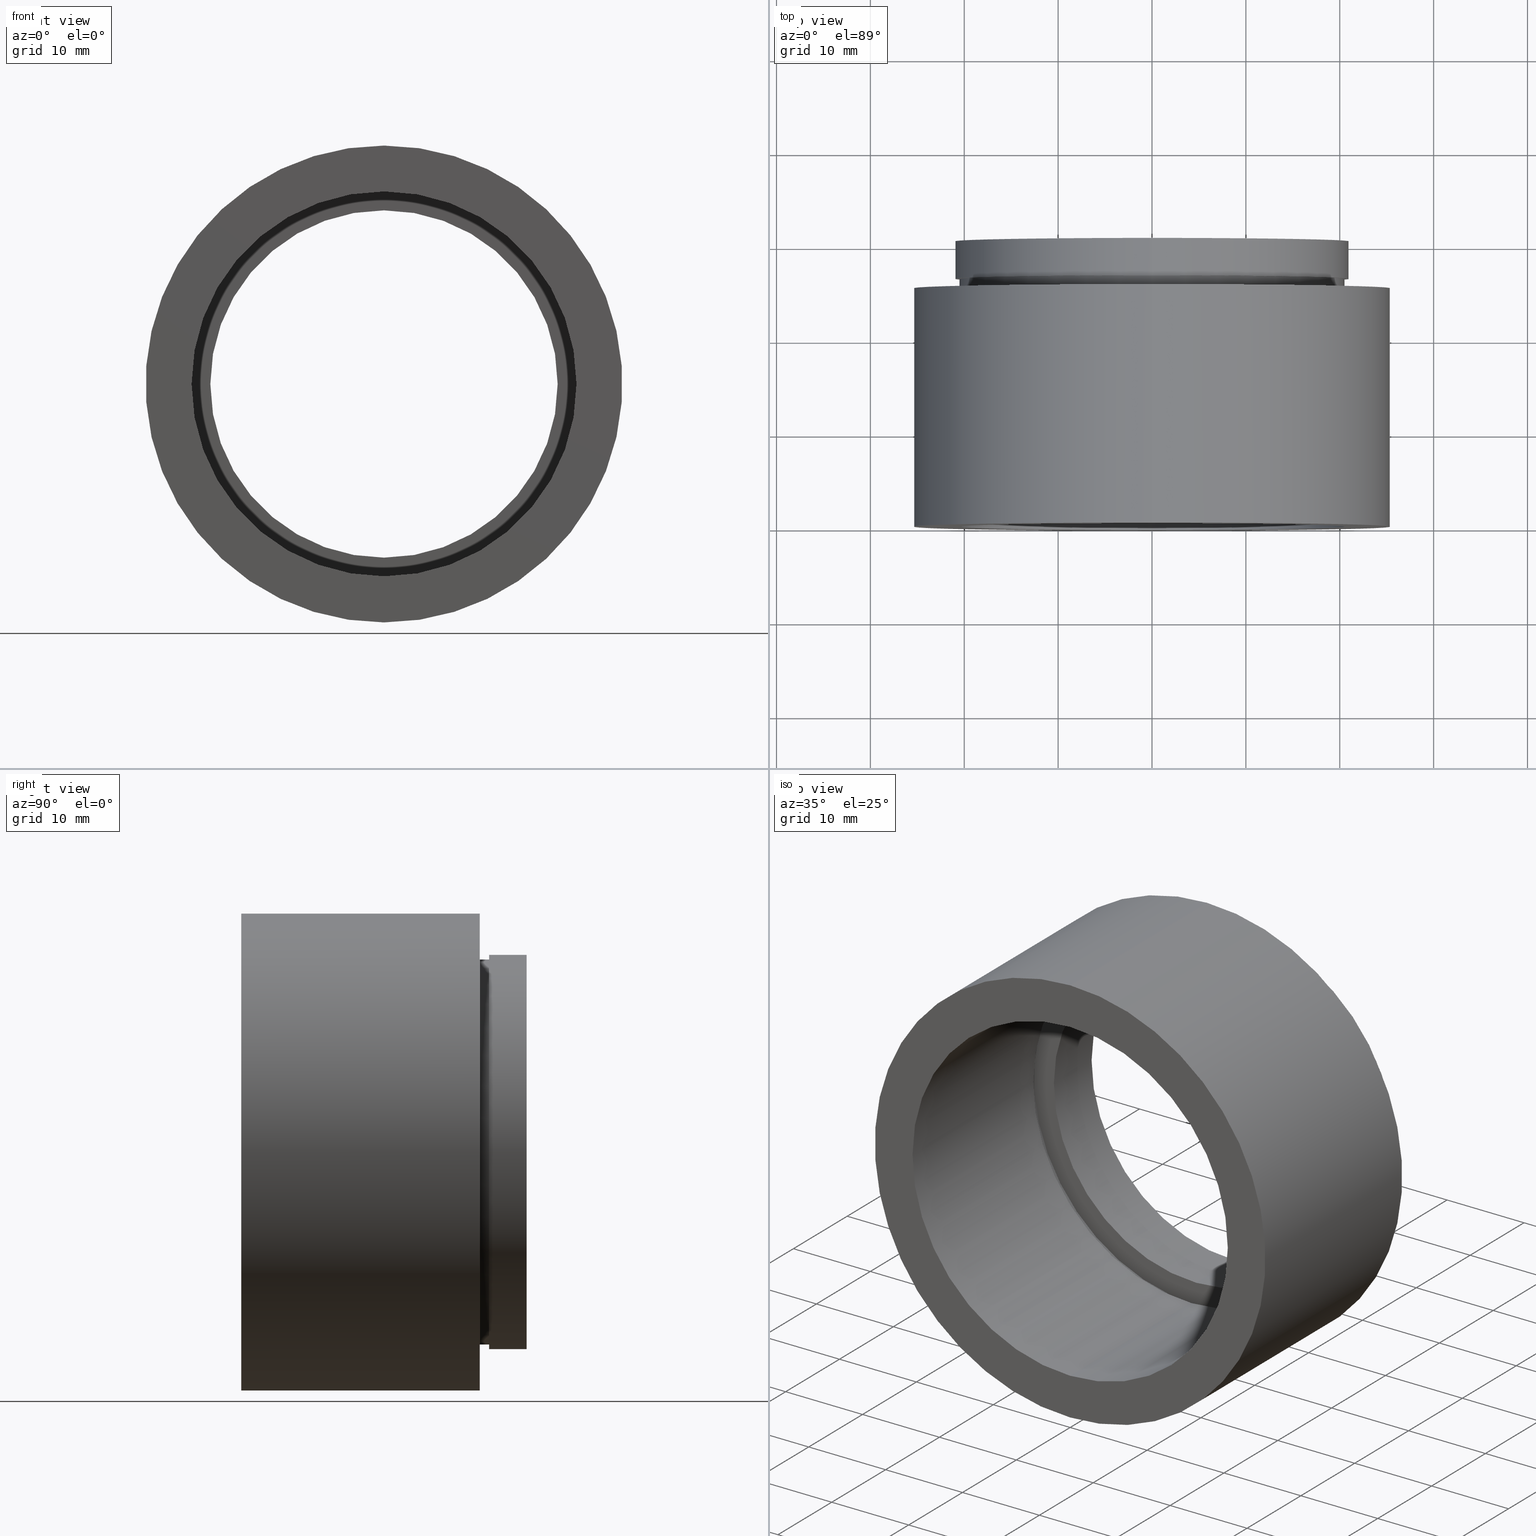
[diagram: canonical four-view strip — front | top / right | iso, engineering-drawing reading convention]
A machine part, canonical four-view strip (front | top / right | iso — engineering-drawing reading convention). The complete STEP part file that produces these views, byte-faithful:
ISO-10303-21;
HEADER;
FILE_DESCRIPTION (( 'STEP AP214' ),
    '1' );
FILE_NAME ('503025.STEP',
    '2019-09-05T05:52:53',
    ( '' ),
    ( '' ),
    'SwSTEP 2.0',
    'SolidWorks 2016',
    '' );
FILE_SCHEMA (( 'AUTOMOTIVE_DESIGN' ));
ENDSEC;

DATA;
#1 = COLOUR_RGB ( '',1.000000000000000000, 1.000000000000000000, 1.000000000000000000 ) ;
#2 = ORIENTED_EDGE ( 'NONE', *, *, #467, .F. ) ;
#3 = CARTESIAN_POINT ( 'NONE',  ( 0.0000000000000000000, 23.39999999999997700, 21.10000000000001600 ) ) ;
#4 = EDGE_CURVE ( 'NONE', #195, #379, #224, .T. ) ;
#5 = PRODUCT_DEFINITION_FORMATION_WITH_SPECIFIED_SOURCE ( '�κ�', '', #378, .NOT_KNOWN. ) ;
#6 = VERTEX_POINT ( 'NONE', #290 ) ;
#7 = VERTEX_POINT ( 'NONE', #16 ) ;
#8 = DIRECTION ( 'NONE',  ( -0.0000000000000000000, 1.000000000000000000, -0.0000000000000000000 ) ) ;
#9 = CIRCLE ( 'NONE', #212, 21.00000000000002100 ) ;
#10 = AXIS2_PLACEMENT_3D ( 'NONE', #493, #354, #26 ) ;
#11 = SURFACE_STYLE_USAGE ( .BOTH. , #427 ) ;
#12 = MANIFOLD_SOLID_BREP ( '��ת1', #55 ) ;
#13 = FACE_OUTER_BOUND ( 'NONE', #162, .T. ) ;
#14 = ORIENTED_EDGE ( 'NONE', *, *, #516, .F. ) ;
#15 = DIRECTION ( 'NONE',  ( 0.0000000000000000000, 0.0000000000000000000, 1.000000000000000000 ) ) ;
#16 = CARTESIAN_POINT ( 'NONE',  ( 2.571758278209444400E-015, 26.39999999999997700, -21.00000000000002100 ) ) ;
#17 = CARTESIAN_POINT ( 'NONE',  ( 20.50000000000002100, 22.39999999999998800, 0.0000000000000000000 ) ) ;
#18 = PRESENTATION_LAYER_ASSIGNMENT (  '', '', ( #547 ) ) ;
#19 = DIRECTION ( 'NONE',  ( -0.0000000000000000000, 1.000000000000000000, -0.0000000000000000000 ) ) ;
#20 = LINE ( 'NONE', #616, #196 ) ;
#21 = VERTEX_POINT ( 'NONE', #249 ) ;
#22 = CARTESIAN_POINT ( 'NONE',  ( 2.584004746200917000E-015, 23.39999999999997700, -21.10000000000001600 ) ) ;
#23 = FACE_BOUND ( 'NONE', #72, .T. ) ;
#24 = EDGE_CURVE ( 'NONE', #478, #398, #36, .T. ) ;
#25 = DIRECTION ( 'NONE',  ( -0.0000000000000000000, 1.000000000000000000, -0.0000000000000000000 ) ) ;
#26 = DIRECTION ( 'NONE',  ( 0.0000000000000000000, 0.0000000000000000000, 1.000000000000000000 ) ) ;
#27 = PRESENTATION_STYLE_ASSIGNMENT (( #34 ) ) ;
#28 =( NAMED_UNIT ( * ) PLANE_ANGLE_UNIT ( ) SI_UNIT ( $, .RADIAN. ) );
#29 = PRESENTATION_STYLE_ASSIGNMENT (( #372 ) ) ;
#30 = AXIS2_PLACEMENT_3D ( 'NONE', #340, #155, #15 ) ;
#31 = EDGE_LOOP ( 'NONE', ( #93, #268, #159, #392 ) ) ;
#32 = APPLICATION_PROTOCOL_DEFINITION ( 'draft international standard', 'automotive_design', 1998, #261 ) ;
#33 = FILL_AREA_STYLE ('',( #407 ) ) ;
#34 = SURFACE_STYLE_USAGE ( .BOTH. , #82 ) ;
#35 = ADVANCED_FACE ( 'NONE', ( #203 ), #182, .T. ) ;
#36 = LINE ( 'NONE', #201, #154 ) ;
#37 = DIRECTION ( 'NONE',  ( 0.0000000000000000000, 0.0000000000000000000, 1.000000000000000000 ) ) ;
#38 = FACE_OUTER_BOUND ( 'NONE', #527, .T. ) ;
#39 = AXIS2_PLACEMENT_3D ( 'NONE', #536, #69, #496 ) ;
#40 = DIRECTION ( 'NONE',  ( 0.0000000000000000000, 0.0000000000000000000, 1.000000000000000000 ) ) ;
#41 = ORIENTED_EDGE ( 'NONE', *, *, #410, .F. ) ;
#42 = CYLINDRICAL_SURFACE ( 'NONE', #190, 25.40000000000001600 ) ;
#43 = ORIENTED_EDGE ( 'NONE', *, *, #169, .T. ) ;
#44 = AXIS2_PLACEMENT_3D ( 'NONE', #129, #172, #37 ) ;
#45 = COLOUR_RGB ( '',1.000000000000000000, 1.000000000000000000, 1.000000000000000000 ) ;
#46 = CIRCLE ( 'NONE', #247, 20.50000000000002100 ) ;
#47 = FACE_OUTER_BOUND ( 'NONE', #519, .T. ) ;
#48 = EDGE_CURVE ( 'NONE', #593, #446, #312, .T. ) ;
#49 = CARTESIAN_POINT ( 'NONE',  ( 2.510525938252076100E-015, 161.3761669434274500, -20.50000000000001800 ) ) ;
#50 = AXIS2_PLACEMENT_3D ( 'NONE', #53, #572, #620 ) ;
#51 = CIRCLE ( 'NONE', #147, 20.50000000000001800 ) ;
#52 = SURFACE_SIDE_STYLE ('',( #352 ) ) ;
#53 = CARTESIAN_POINT ( 'NONE',  ( 0.0000000000000000000, 26.39999999999997700, 0.0000000000000000000 ) ) ;
#54 = ORIENTED_EDGE ( 'NONE', *, *, #239, .F. ) ;
#55 = CLOSED_SHELL ( 'NONE', ( #596, #73, #400, #266, #35, #483, #393, #304, #114, #609, #448, #79, #445, #490, #296, #543, #310, #83 ) ) ;
#56 = EDGE_CURVE ( 'NONE', #103, #614, #60, .T. ) ;
#57 = DIRECTION ( 'NONE',  ( -0.0000000000000000000, 1.000000000000000000, -0.0000000000000000000 ) ) ;
#58 = AXIS2_PLACEMENT_3D ( 'NONE', #376, #238, #522 ) ;
#59 = STYLED_ITEM ( 'NONE', ( #165 ), #12 ) ;
#60 = LINE ( 'NONE', #295, #552 ) ;
#61 = ADVANCED_BREP_SHAPE_REPRESENTATION ( '503025', ( #12, #601 ), #406 ) ;
#62 = MECHANICAL_DESIGN_GEOMETRIC_PRESENTATION_REPRESENTATION (  '', ( #509 ), #300 ) ;
#63 = DIRECTION ( 'NONE',  ( 0.0000000000000000000, -0.0000000000000000000, -1.000000000000000000 ) ) ;
#64 = ORIENTED_EDGE ( 'NONE', *, *, #610, .F. ) ;
#65 = ORIENTED_EDGE ( 'NONE', *, *, #70, .T. ) ;
#66 = DIRECTION ( 'NONE',  ( 0.0000000000000000000, 0.0000000000000000000, 1.000000000000000000 ) ) ;
#67 = CARTESIAN_POINT ( 'NONE',  ( 2.584004746200917000E-015, 161.3761669434274500, -21.10000000000001600 ) ) ;
#68 = MECHANICAL_DESIGN_GEOMETRIC_PRESENTATION_REPRESENTATION (  '', ( #547 ), #161 ) ;
#69 = DIRECTION ( 'NONE',  ( -0.0000000000000000000, 1.000000000000000000, -0.0000000000000000000 ) ) ;
#70 = EDGE_CURVE ( 'NONE', #6, #81, #502, .T. ) ;
#71 = SURFACE_STYLE_FILL_AREA ( #319 ) ;
#72 = EDGE_LOOP ( 'NONE', ( #248, #408 ) ) ;
#73 = ADVANCED_FACE ( 'NONE', ( #454 ), #208, .F. ) ;
#74 = COLOUR_RGB ( '',1.000000000000000000, 1.000000000000000000, 1.000000000000000000 ) ;
#75 = VERTEX_POINT ( 'NONE', #350 ) ;
#76 = PRESENTATION_LAYER_ASSIGNMENT (  '', '', ( #521 ) ) ;
#77 = ORIENTED_EDGE ( 'NONE', *, *, #56, .F. ) ;
#78 = UNCERTAINTY_MEASURE_WITH_UNIT (LENGTH_MEASURE( 1.000000000000000100E-005 ), #604, 'distance_accuracy_value', 'NONE');
#79 = ADVANCED_FACE ( 'NONE', ( #346, #595 ), #168, .F. ) ;
#80 = DIRECTION ( 'NONE',  ( 0.0000000000000000000, 0.0000000000000000000, 1.000000000000000000 ) ) ;
#81 = VERTEX_POINT ( 'NONE', #22 ) ;
#82 = SURFACE_SIDE_STYLE ('',( #137 ) ) ;
#83 = ADVANCED_FACE ( 'NONE', ( #508, #471 ), #113, .F. ) ;
#84 = ORIENTED_EDGE ( 'NONE', *, *, #481, .F. ) ;
#85 = EDGE_CURVE ( 'NONE', #478, #7, #9, .T. ) ;
#86 = ORIENTED_EDGE ( 'NONE', *, *, #335, .F. ) ;
#87 = DIRECTION ( 'NONE',  ( -0.0000000000000000000, 1.000000000000000000, -0.0000000000000000000 ) ) ;
#88 = VERTEX_POINT ( 'NONE', #592 ) ;
#89 =( NAMED_UNIT ( * ) SI_UNIT ( $, .STERADIAN. ) SOLID_ANGLE_UNIT ( ) );
#90 = VERTEX_POINT ( 'NONE', #345 ) ;
#91 = DIRECTION ( 'NONE',  ( 0.0000000000000000000, -0.0000000000000000000, -1.000000000000000000 ) ) ;
#92 = AXIS2_PLACEMENT_3D ( 'NONE', #102, #530, #250 ) ;
#93 = ORIENTED_EDGE ( 'NONE', *, *, #501, .F. ) ;
#94 = AXIS2_PLACEMENT_3D ( 'NONE', #181, #451, #264 ) ;
#95 = LINE ( 'NONE', #515, #132 ) ;
#96 = CARTESIAN_POINT ( 'NONE',  ( 0.0000000000000000000, 22.39999999999997700, 20.50000000000002100 ) ) ;
#97 = EDGE_CURVE ( 'NONE', #90, #6, #260, .T. ) ;
#98 = CARTESIAN_POINT ( 'NONE',  ( 0.0000000000000000000, 30.39999999999998400, 0.0000000000000000000 ) ) ;
#99 = LINE ( 'NONE', #140, #369 ) ;
#100 = ORIENTED_EDGE ( 'NONE', *, *, #501, .T. ) ;
#101 = FILL_AREA_STYLE_COLOUR ( '', #559 ) ;
#102 = CARTESIAN_POINT ( 'NONE',  ( 0.0000000000000000000, 23.39999999999997700, 0.0000000000000000000 ) ) ;
#103 = VERTEX_POINT ( 'NONE', #541 ) ;
#104 = EDGE_CURVE ( 'NONE', #7, #495, #273, .T. ) ;
#105 =( NAMED_UNIT ( * ) PLANE_ANGLE_UNIT ( ) SI_UNIT ( $, .RADIAN. ) );
#106 =( GEOMETRIC_REPRESENTATION_CONTEXT ( 3 ) GLOBAL_UNCERTAINTY_ASSIGNED_CONTEXT ( ( #494 ) ) GLOBAL_UNIT_ASSIGNED_CONTEXT ( ( #138, #567, #89 ) ) REPRESENTATION_CONTEXT ( 'NONE', 'WORKASPACE' ) );
#107 = CARTESIAN_POINT ( 'NONE',  ( 0.0000000000000000000, 161.3761669434274500, 0.0000000000000000000 ) ) ;
#108 = ORIENTED_EDGE ( 'NONE', *, *, #433, .F. ) ;
#109 = DIRECTION ( 'NONE',  ( 0.0000000000000000000, 0.0000000000000000000, 1.000000000000000000 ) ) ;
#110 = AXIS2_PLACEMENT_3D ( 'NONE', #401, #176, #611 ) ;
#111 = CARTESIAN_POINT ( 'NONE',  ( 0.0000000000000000000, 161.3761669434274500, 21.10000000000001600 ) ) ;
#112 = CARTESIAN_POINT ( 'NONE',  ( 0.0000000000000000000, 161.3761669434274500, 0.0000000000000000000 ) ) ;
#113 = PLANE ( 'NONE',  #10 ) ;
#114 = ADVANCED_FACE ( 'NONE', ( #381 ), #388, .T. ) ;
#115 = DIRECTION ( 'NONE',  ( -0.0000000000000000000, 1.000000000000000000, -0.0000000000000000000 ) ) ;
#116 = MECHANICAL_DESIGN_GEOMETRIC_PRESENTATION_REPRESENTATION (  '', ( #128 ), #183 ) ;
#117 = FACE_BOUND ( 'NONE', #429, .T. ) ;
#118 = FILL_AREA_STYLE ('',( #545 ) ) ;
#119 = FACE_OUTER_BOUND ( 'NONE', #412, .T. ) ;
#120 =( NAMED_UNIT ( * ) SI_UNIT ( $, .STERADIAN. ) SOLID_ANGLE_UNIT ( ) );
#121 = EDGE_LOOP ( 'NONE', ( #301, #365, #64, #469 ) ) ;
#122 = FILL_AREA_STYLE ('',( #341 ) ) ;
#123 = CARTESIAN_POINT ( 'NONE',  ( 0.0000000000000000000, 22.39999999999997700, 0.0000000000000000000 ) ) ;
#124 = EDGE_LOOP ( 'NONE', ( #594, #148, #339, #136 ) ) ;
#125 = CYLINDRICAL_SURFACE ( 'NONE', #461, 18.50000000000001400 ) ;
#126 = DIRECTION ( 'NONE',  ( -0.0000000000000000000, 1.000000000000000000, -0.0000000000000000000 ) ) ;
#127 = CARTESIAN_POINT ( 'NONE',  ( 0.0000000000000000000, -2.775557561562891400E-014, 0.0000000000000000000 ) ) ;
#128 = STYLED_ITEM ( 'NONE', ( #404 ), #73 ) ;
#129 = CARTESIAN_POINT ( 'NONE',  ( 0.0000000000000000000, 30.39999999999998400, 0.0000000000000000000 ) ) ;
#130 = AXIS2_PLACEMENT_3D ( 'NONE', #170, #488, #254 ) ;
#131 = ORIENTED_EDGE ( 'NONE', *, *, #97, .F. ) ;
#132 = VECTOR ( 'NONE', #280, 1000.000000000000000 ) ;
#133 = EDGE_CURVE ( 'NONE', #75, #284, #173, .T. ) ;
#134 = ORIENTED_EDGE ( 'NONE', *, *, #231, .T. ) ;
#135 = CARTESIAN_POINT ( 'NONE',  ( 18.50000000000001400, 30.39999999999998400, 0.0000000000000000000 ) ) ;
#136 = ORIENTED_EDGE ( 'NONE', *, *, #163, .T. ) ;
#137 = SURFACE_STYLE_FILL_AREA ( #33 ) ;
#138 =( LENGTH_UNIT ( ) NAMED_UNIT ( * ) SI_UNIT ( .MILLI., .METRE. ) );
#139 = CYLINDRICAL_SURFACE ( 'NONE', #449, 20.50000000000002100 ) ;
#140 = CARTESIAN_POINT ( 'NONE',  ( 0.0000000000000000000, 161.3761669434274500, 25.40000000000001600 ) ) ;
#141 = ORIENTED_EDGE ( 'NONE', *, *, #362, .F. ) ;
#142 = DIRECTION ( 'NONE',  ( -0.0000000000000000000, 1.000000000000000000, -0.0000000000000000000 ) ) ;
#143 = DIRECTION ( 'NONE',  ( -0.0000000000000000000, 1.000000000000000000, -0.0000000000000000000 ) ) ;
#144 = DIRECTION ( 'NONE',  ( 0.0000000000000000000, 0.0000000000000000000, 1.000000000000000000 ) ) ;
#145 = LINE ( 'NONE', #411, #421 ) ;
#146 = EDGE_CURVE ( 'NONE', #311, #103, #46, .T. ) ;
#147 = AXIS2_PLACEMENT_3D ( 'NONE', #389, #583, #338 ) ;
#148 = ORIENTED_EDGE ( 'NONE', *, *, #591, .F. ) ;
#149 = PRESENTATION_LAYER_ASSIGNMENT (  '', '', ( #397 ) ) ;
#150 = UNCERTAINTY_MEASURE_WITH_UNIT (LENGTH_MEASURE( 1.000000000000000100E-005 ), #217, 'distance_accuracy_value', 'NONE');
#151 = VECTOR ( 'NONE', #126, 1000.000000000000000 ) ;
#152 =( LENGTH_UNIT ( ) NAMED_UNIT ( * ) SI_UNIT ( .MILLI., .METRE. ) );
#153 = DIRECTION ( 'NONE',  ( -0.0000000000000000000, 1.000000000000000000, -0.0000000000000000000 ) ) ;
#154 = VECTOR ( 'NONE', #19, 1000.000000000000000 ) ;
#155 = DIRECTION ( 'NONE',  ( -0.0000000000000000000, 1.000000000000000000, -0.0000000000000000000 ) ) ;
#156 = VECTOR ( 'NONE', #317, 1000.000000000000000 ) ;
#157 = CIRCLE ( 'NONE', #525, 21.10000000000001600 ) ;
#158 = DIRECTION ( 'NONE',  ( -0.0000000000000000000, 1.000000000000000000, 0.0000000000000000000 ) ) ;
#159 = ORIENTED_EDGE ( 'NONE', *, *, #228, .T. ) ;
#160 = AXIS2_PLACEMENT_3D ( 'NONE', #380, #434, #383 ) ;
#161 =( GEOMETRIC_REPRESENTATION_CONTEXT ( 3 ) GLOBAL_UNCERTAINTY_ASSIGNED_CONTEXT ( ( #150 ) ) GLOBAL_UNIT_ASSIGNED_CONTEXT ( ( #217, #560, #409 ) ) REPRESENTATION_CONTEXT ( 'NONE', 'WORKASPACE' ) );
#162 = EDGE_LOOP ( 'NONE', ( #77, #475, #204, #385 ) ) ;
#163 = EDGE_CURVE ( 'NONE', #284, #569, #313, .T. ) ;
#164 = DIRECTION ( 'NONE',  ( 0.0000000000000000000, -0.0000000000000000000, -1.000000000000000000 ) ) ;
#165 = PRESENTATION_STYLE_ASSIGNMENT (( #11 ) ) ;
#166 = UNCERTAINTY_MEASURE_WITH_UNIT (LENGTH_MEASURE( 1.000000000000000100E-005 ), #279, 'distance_accuracy_value', 'NONE');
#167 = CIRCLE ( 'NONE', #603, 25.40000000000001300 ) ;
#168 = PLANE ( 'NONE',  #524 ) ;
#169 = EDGE_CURVE ( 'NONE', #371, #593, #580, .T. ) ;
#170 = CARTESIAN_POINT ( 'NONE',  ( 0.0000000000000000000, 22.40000000000000200, 0.0000000000000000000 ) ) ;
#171 = AXIS2_PLACEMENT_3D ( 'NONE', #135, #323, #91 ) ;
#172 = DIRECTION ( 'NONE',  ( -0.0000000000000000000, 1.000000000000000000, -0.0000000000000000000 ) ) ;
#173 = LINE ( 'NONE', #357, #156 ) ;
#174 = UNCERTAINTY_MEASURE_WITH_UNIT (LENGTH_MEASURE( 1.000000000000000100E-005 ), #259, 'distance_accuracy_value', 'NONE');
#175 = CIRCLE ( 'NONE', #50, 21.00000000000002100 ) ;
#176 = DIRECTION ( 'NONE',  ( -0.0000000000000000000, 1.000000000000000000, -0.0000000000000000000 ) ) ;
#177 = ORIENTED_EDGE ( 'NONE', *, *, #467, .T. ) ;
#178 = FACE_BOUND ( 'NONE', #588, .T. ) ;
#179 = PRESENTATION_LAYER_ASSIGNMENT (  '', '', ( #509 ) ) ;
#180 = CARTESIAN_POINT ( 'NONE',  ( 0.0000000000000000000, 25.39999999999997700, 25.40000000000001300 ) ) ;
#181 = CARTESIAN_POINT ( 'NONE',  ( 0.0000000000000000000, 23.39999999999997700, 0.0000000000000000000 ) ) ;
#182 = CYLINDRICAL_SURFACE ( 'NONE', #193, 21.00000000000001800 ) ;
#183 =( GEOMETRIC_REPRESENTATION_CONTEXT ( 3 ) GLOBAL_UNCERTAINTY_ASSIGNED_CONTEXT ( ( #174 ) ) GLOBAL_UNIT_ASSIGNED_CONTEXT ( ( #259, #606, #441 ) ) REPRESENTATION_CONTEXT ( 'NONE', 'WORKASPACE' ) );
#184 = CARTESIAN_POINT ( 'NONE',  ( 0.0000000000000000000, 161.3761669434274500, 0.0000000000000000000 ) ) ;
#185 = CARTESIAN_POINT ( 'NONE',  ( 0.0000000000000000000, 25.39999999999997700, 0.0000000000000000000 ) ) ;
#186 = DIRECTION ( 'NONE',  ( -0.0000000000000000000, 1.000000000000000000, -0.0000000000000000000 ) ) ;
#187 = FILL_AREA_STYLE_COLOUR ( '', #523 ) ;
#188 = PRESENTATION_STYLE_ASSIGNMENT (( #391 ) ) ;
#189 = DIRECTION ( 'NONE',  ( 0.0000000000000000000, 0.0000000000000000000, 1.000000000000000000 ) ) ;
#190 = AXIS2_PLACEMENT_3D ( 'NONE', #197, #520, #278 ) ;
#191 = ORIENTED_EDGE ( 'NONE', *, *, #235, .F. ) ;
#192 = CARTESIAN_POINT ( 'NONE',  ( 0.0000000000000000000, 25.39999999999997700, 0.0000000000000000000 ) ) ;
#193 = AXIS2_PLACEMENT_3D ( 'NONE', #531, #399, #209 ) ;
#194 = ORIENTED_EDGE ( 'NONE', *, *, #85, .F. ) ;
#195 = VERTEX_POINT ( 'NONE', #180 ) ;
#196 = VECTOR ( 'NONE', #618, 1000.000000000000000 ) ;
#197 = CARTESIAN_POINT ( 'NONE',  ( 0.0000000000000000000, 161.3761669434274500, 0.0000000000000000000 ) ) ;
#198 = EDGE_LOOP ( 'NONE', ( #324, #607 ) ) ;
#199 = CIRCLE ( 'NONE', #587, 20.50000000000001400 ) ;
#200 = PLANE ( 'NONE',  #413 ) ;
#201 = CARTESIAN_POINT ( 'NONE',  ( 0.0000000000000000000, 161.3761669434274500, 21.00000000000001800 ) ) ;
#202 = AXIS2_PLACEMENT_3D ( 'NONE', #243, #236, #329 ) ;
#203 = FACE_OUTER_BOUND ( 'NONE', #121, .T. ) ;
#204 = ORIENTED_EDGE ( 'NONE', *, *, #425, .T. ) ;
#205 = PRODUCT_DEFINITION_CONTEXT ( 'detailed design', #261, 'design' ) ;
#206 = DIRECTION ( 'NONE',  ( -0.0000000000000000000, 1.000000000000000000, -0.0000000000000000000 ) ) ;
#207 = ORIENTED_EDGE ( 'NONE', *, *, #394, .T. ) ;
#208 = CYLINDRICAL_SURFACE ( 'NONE', #459, 20.50000000000002100 ) ;
#209 = DIRECTION ( 'NONE',  ( 0.0000000000000000000, 0.0000000000000000000, 1.000000000000000000 ) ) ;
#210 = SURFACE_STYLE_USAGE ( .BOTH. , #597 ) ;
#211 = ORIENTED_EDGE ( 'NONE', *, *, #394, .F. ) ;
#212 = AXIS2_PLACEMENT_3D ( 'NONE', #497, #25, #213 ) ;
#213 = DIRECTION ( 'NONE',  ( 0.0000000000000000000, 0.0000000000000000000, 1.000000000000000000 ) ) ;
#214 = FILL_AREA_STYLE_COLOUR ( '', #430 ) ;
#215 = VERTEX_POINT ( 'NONE', #499 ) ;
#216 =( LENGTH_UNIT ( ) NAMED_UNIT ( * ) SI_UNIT ( .MILLI., .METRE. ) );
#217 =( LENGTH_UNIT ( ) NAMED_UNIT ( * ) SI_UNIT ( .MILLI., .METRE. ) );
#218 = ORIENTED_EDGE ( 'NONE', *, *, #433, .T. ) ;
#219 = AXIS2_PLACEMENT_3D ( 'NONE', #288, #158, #109 ) ;
#220 = DIRECTION ( 'NONE',  ( 0.0000000000000000000, 0.0000000000000000000, 1.000000000000000000 ) ) ;
#221 = FACE_OUTER_BOUND ( 'NONE', #538, .T. ) ;
#222 = DIRECTION ( 'NONE',  ( -0.0000000000000000000, 1.000000000000000000, -0.0000000000000000000 ) ) ;
#223 = PRESENTATION_LAYER_ASSIGNMENT (  '', '', ( #128 ) ) ;
#224 = CIRCLE ( 'NONE', #160, 25.40000000000001300 ) ;
#225 = CARTESIAN_POINT ( 'NONE',  ( 0.0000000000000000000, 22.39999999999997700, 0.0000000000000000000 ) ) ;
#226 = ORIENTED_EDGE ( 'NONE', *, *, #269, .F. ) ;
#227 = LINE ( 'NONE', #111, #237 ) ;
#228 = EDGE_CURVE ( 'NONE', #614, #442, #382, .T. ) ;
#229 = CARTESIAN_POINT ( 'NONE',  ( 0.0000000000000000000, -2.775557561562891400E-014, 20.50000000000002100 ) ) ;
#230 = DIRECTION ( 'NONE',  ( -0.0000000000000000000, 1.000000000000000000, -0.0000000000000000000 ) ) ;
#231 = EDGE_CURVE ( 'NONE', #359, #88, #275, .T. ) ;
#232 = DIRECTION ( 'NONE',  ( -0.0000000000000000000, 1.000000000000000000, -0.0000000000000000000 ) ) ;
#233 = AXIS2_PLACEMENT_3D ( 'NONE', #534, #482, #245 ) ;
#234 = EDGE_LOOP ( 'NONE', ( #41, #211 ) ) ;
#235 = EDGE_CURVE ( 'NONE', #359, #379, #145, .T. ) ;
#236 = DIRECTION ( 'NONE',  ( -0.0000000000000000000, 1.000000000000000000, -0.0000000000000000000 ) ) ;
#237 = VECTOR ( 'NONE', #8, 1000.000000000000000 ) ;
#238 = DIRECTION ( 'NONE',  ( -0.0000000000000000000, 1.000000000000000000, -0.0000000000000000000 ) ) ;
#239 = EDGE_CURVE ( 'NONE', #81, #464, #293, .T. ) ;
#240 = AXIS2_PLACEMENT_3D ( 'NONE', #343, #153, #66 ) ;
#241 = ORIENTED_EDGE ( 'NONE', *, *, #231, .F. ) ;
#242 = CARTESIAN_POINT ( 'NONE',  ( 2.510525938252076100E-015, 26.39999999999997700, -20.50000000000001800 ) ) ;
#243 = CARTESIAN_POINT ( 'NONE',  ( 0.0000000000000000000, 23.39999999999997700, 0.0000000000000000000 ) ) ;
#244 = EDGE_LOOP ( 'NONE', ( #457, #141 ) ) ;
#245 = DIRECTION ( 'NONE',  ( 0.0000000000000000000, 0.0000000000000000000, 1.000000000000000000 ) ) ;
#246 = CARTESIAN_POINT ( 'NONE',  ( 21.00000000000002100, 26.39999999999998400, 0.0000000000000000000 ) ) ;
#247 = AXIS2_PLACEMENT_3D ( 'NONE', #551, #403, #220 ) ;
#248 = ORIENTED_EDGE ( 'NONE', *, *, #263, .F. ) ;
#249 = CARTESIAN_POINT ( 'NONE',  ( 2.265596578422605000E-015, 23.39999999999997700, -18.50000000000001400 ) ) ;
#250 = DIRECTION ( 'NONE',  ( 0.0000000000000000000, 0.0000000000000000000, 1.000000000000000000 ) ) ;
#251 = SURFACE_STYLE_FILL_AREA ( #563 ) ;
#252 = DIRECTION ( 'NONE',  ( 0.0000000000000000000, 0.0000000000000000000, 1.000000000000000000 ) ) ;
#253 = ORIENTED_EDGE ( 'NONE', *, *, #362, .T. ) ;
#254 = DIRECTION ( 'NONE',  ( 0.0000000000000000000, 0.0000000000000000000, 1.000000000000000000 ) ) ;
#255 = CIRCLE ( 'NONE', #491, 21.00000000000001800 ) ;
#256 = CARTESIAN_POINT ( 'NONE',  ( 0.0000000000000000000, 30.39999999999998400, 0.0000000000000000000 ) ) ;
#257 = EDGE_CURVE ( 'NONE', #464, #81, #157, .T. ) ;
#258 = ORIENTED_EDGE ( 'NONE', *, *, #4, .F. ) ;
#259 =( LENGTH_UNIT ( ) NAMED_UNIT ( * ) SI_UNIT ( .MILLI., .METRE. ) );
#260 = CIRCLE ( 'NONE', #130, 21.10000000000001600 ) ;
#261 = APPLICATION_CONTEXT ( 'automotive_design' ) ;
#262 = SURFACE_SIDE_STYLE ('',( #540 ) ) ;
#263 = EDGE_CURVE ( 'NONE', #442, #614, #542, .T. ) ;
#264 = DIRECTION ( 'NONE',  ( 0.0000000000000000000, 0.0000000000000000000, 1.000000000000000000 ) ) ;
#265 = ORIENTED_EDGE ( 'NONE', *, *, #481, .T. ) ;
#266 = ADVANCED_FACE ( 'NONE', ( #281 ), #361, .T. ) ;
#267 = CARTESIAN_POINT ( 'NONE',  ( 0.0000000000000000000, 30.39999999999998400, 18.50000000000001400 ) ) ;
#268 = ORIENTED_EDGE ( 'NONE', *, *, #56, .T. ) ;
#269 = EDGE_CURVE ( 'NONE', #7, #478, #175, .T. ) ;
#270 = DIRECTION ( 'NONE',  ( -0.0000000000000000000, 1.000000000000000000, -0.0000000000000000000 ) ) ;
#271 = STYLED_ITEM ( 'NONE', ( #29 ), #296 ) ;
#272 = PLANE ( 'NONE',  #171 ) ;
#273 = LINE ( 'NONE', #305, #151 ) ;
#274 = SURFACE_SIDE_STYLE ('',( #71 ) ) ;
#275 = CIRCLE ( 'NONE', #302, 25.40000000000002000 ) ;
#276 = CARTESIAN_POINT ( 'NONE',  ( 3.110602869834279600E-015, -2.775557561562891400E-014, -25.40000000000002300 ) ) ;
#277 = FACE_OUTER_BOUND ( 'NONE', #314, .T. ) ;
#278 = DIRECTION ( 'NONE',  ( 0.0000000000000000000, 0.0000000000000000000, 1.000000000000000000 ) ) ;
#279 =( LENGTH_UNIT ( ) NAMED_UNIT ( * ) SI_UNIT ( .MILLI., .METRE. ) );
#280 = DIRECTION ( 'NONE',  ( -0.0000000000000000000, 1.000000000000000000, -0.0000000000000000000 ) ) ;
#281 = FACE_OUTER_BOUND ( 'NONE', #337, .T. ) ;
#282 = EDGE_LOOP ( 'NONE', ( #349, #207, #43, #320 ) ) ;
#283 =( NAMED_UNIT ( * ) SI_UNIT ( $, .STERADIAN. ) SOLID_ANGLE_UNIT ( ) );
#284 = VERTEX_POINT ( 'NONE', #267 ) ;
#285 = UNCERTAINTY_MEASURE_WITH_UNIT (LENGTH_MEASURE( 1.000000000000000100E-005 ), #476, 'distance_accuracy_value', 'NONE');
#286 = EDGE_CURVE ( 'NONE', #21, #569, #20, .T. ) ;
#287 = FILL_AREA_STYLE ('',( #582 ) ) ;
#288 = CARTESIAN_POINT ( 'NONE',  ( 25.40000000000002000, -1.454715626710879400E-014, 0.0000000000000000000 ) ) ;
#289 = ORIENTED_EDGE ( 'NONE', *, *, #487, .T. ) ;
#290 = CARTESIAN_POINT ( 'NONE',  ( 2.584004746200917000E-015, 22.40000000000000200, -21.10000000000001600 ) ) ;
#291 = DIRECTION ( 'NONE',  ( 0.0000000000000000000, -1.000000000000000000, 0.0000000000000000000 ) ) ;
#292 = STYLED_ITEM ( 'NONE', ( #188 ), #35 ) ;
#293 = CIRCLE ( 'NONE', #94, 21.10000000000001600 ) ;
#294 = ORIENTED_EDGE ( 'NONE', *, *, #239, .T. ) ;
#295 = CARTESIAN_POINT ( 'NONE',  ( 2.510525938252076500E-015, 161.3761669434274500, -20.50000000000002100 ) ) ;
#296 = ADVANCED_FACE ( 'NONE', ( #13 ), #139, .F. ) ;
#297 = DIRECTION ( 'NONE',  ( 0.0000000000000000000, 0.0000000000000000000, 1.000000000000000000 ) ) ;
#298 = FACE_OUTER_BOUND ( 'NONE', #512, .T. ) ;
#299 =( NAMED_UNIT ( * ) SI_UNIT ( $, .STERADIAN. ) SOLID_ANGLE_UNIT ( ) );
#300 =( GEOMETRIC_REPRESENTATION_CONTEXT ( 3 ) GLOBAL_UNCERTAINTY_ASSIGNED_CONTEXT ( ( #78 ) ) GLOBAL_UNIT_ASSIGNED_CONTEXT ( ( #604, #28, #120 ) ) REPRESENTATION_CONTEXT ( 'NONE', 'WORKASPACE' ) );
#301 = ORIENTED_EDGE ( 'NONE', *, *, #85, .T. ) ;
#302 = AXIS2_PLACEMENT_3D ( 'NONE', #127, #360, #80 ) ;
#303 =( NAMED_UNIT ( * ) SI_UNIT ( $, .STERADIAN. ) SOLID_ANGLE_UNIT ( ) );
#304 = ADVANCED_FACE ( 'NONE', ( #405, #38 ), #272, .F. ) ;
#305 = CARTESIAN_POINT ( 'NONE',  ( 2.571758278209444000E-015, 161.3761669434274500, -21.00000000000001800 ) ) ;
#306 = VECTOR ( 'NONE', #447, 1000.000000000000000 ) ;
#307 = CARTESIAN_POINT ( 'NONE',  ( 0.0000000000000000000, 0.0000000000000000000, 0.0000000000000000000 ) ) ;
#308 = EDGE_CURVE ( 'NONE', #88, #195, #99, .T. ) ;
#309 = ORIENTED_EDGE ( 'NONE', *, *, #169, .F. ) ;
#310 = ADVANCED_FACE ( 'NONE', ( #47 ), #613, .F. ) ;
#311 = VERTEX_POINT ( 'NONE', #229 ) ;
#312 = CIRCLE ( 'NONE', #39, 20.50000000000001800 ) ;
#313 = CIRCLE ( 'NONE', #44, 18.50000000000001400 ) ;
#314 = EDGE_LOOP ( 'NONE', ( #194, #226 ) ) ;
#315 = EDGE_CURVE ( 'NONE', #215, #446, #390, .T. ) ;
#316 = ORIENTED_EDGE ( 'NONE', *, *, #146, .T. ) ;
#317 = DIRECTION ( 'NONE',  ( -0.0000000000000000000, 1.000000000000000000, -0.0000000000000000000 ) ) ;
#318 = VECTOR ( 'NONE', #270, 1000.000000000000000 ) ;
#319 = FILL_AREA_STYLE ('',( #414 ) ) ;
#320 = ORIENTED_EDGE ( 'NONE', *, *, #599, .F. ) ;
#321 = DIRECTION ( 'NONE',  ( -0.0000000000000000000, 1.000000000000000000, -0.0000000000000000000 ) ) ;
#322 = CYLINDRICAL_SURFACE ( 'NONE', #470, 25.40000000000001600 ) ;
#323 = DIRECTION ( 'NONE',  ( 0.0000000000000000000, -1.000000000000000000, 0.0000000000000000000 ) ) ;
#324 = ORIENTED_EDGE ( 'NONE', *, *, #4, .T. ) ;
#325 =( LENGTH_UNIT ( ) NAMED_UNIT ( * ) SI_UNIT ( .MILLI., .METRE. ) );
#326 =( GEOMETRIC_REPRESENTATION_CONTEXT ( 3 ) GLOBAL_UNCERTAINTY_ASSIGNED_CONTEXT ( ( #617 ) ) GLOBAL_UNIT_ASSIGNED_CONTEXT ( ( #325, #370, #462 ) ) REPRESENTATION_CONTEXT ( 'NONE', 'WORKASPACE' ) );
#327 = SURFACE_STYLE_FILL_AREA ( #287 ) ;
#328 = ORIENTED_EDGE ( 'NONE', *, *, #269, .T. ) ;
#329 = DIRECTION ( 'NONE',  ( 0.0000000000000000000, 0.0000000000000000000, 1.000000000000000000 ) ) ;
#330 = DIRECTION ( 'NONE',  ( 0.0000000000000000000, 0.0000000000000000000, 1.000000000000000000 ) ) ;
#331 = PRESENTATION_STYLE_ASSIGNMENT (( #514 ) ) ;
#332 = CARTESIAN_POINT ( 'NONE',  ( 0.0000000000000000000, -2.775557561562891400E-014, 0.0000000000000000000 ) ) ;
#333 = CARTESIAN_POINT ( 'NONE',  ( 0.0000000000000000000, 25.39999999999997700, 0.0000000000000000000 ) ) ;
#334 = EDGE_LOOP ( 'NONE', ( #108, #241 ) ) ;
#335 = EDGE_CURVE ( 'NONE', #379, #195, #167, .T. ) ;
#336 = AXIS2_PLACEMENT_3D ( 'NONE', #225, #558, #40 ) ;
#337 = EDGE_LOOP ( 'NONE', ( #453, #549, #505, #309 ) ) ;
#338 = DIRECTION ( 'NONE',  ( 0.0000000000000000000, 0.0000000000000000000, 1.000000000000000000 ) ) ;
#339 = ORIENTED_EDGE ( 'NONE', *, *, #133, .T. ) ;
#340 = CARTESIAN_POINT ( 'NONE',  ( 0.0000000000000000000, -2.775557561562891400E-014, 0.0000000000000000000 ) ) ;
#341 = FILL_AREA_STYLE_COLOUR ( '', #74 ) ;
#342 = ORIENTED_EDGE ( 'NONE', *, *, #133, .F. ) ;
#343 = CARTESIAN_POINT ( 'NONE',  ( 0.0000000000000000000, 161.3761669434274500, 0.0000000000000000000 ) ) ;
#344 = ORIENTED_EDGE ( 'NONE', *, *, #487, .F. ) ;
#345 = CARTESIAN_POINT ( 'NONE',  ( 0.0000000000000000000, 22.40000000000000200, 21.10000000000001600 ) ) ;
#346 = FACE_BOUND ( 'NONE', #234, .T. ) ;
#347 = DIRECTION ( 'NONE',  ( -0.0000000000000000000, 1.000000000000000000, -0.0000000000000000000 ) ) ;
#348 = APPLICATION_CONTEXT ( 'automotive_design' ) ;
#349 = ORIENTED_EDGE ( 'NONE', *, *, #315, .F. ) ;
#350 = CARTESIAN_POINT ( 'NONE',  ( 0.0000000000000000000, 23.39999999999997700, 18.50000000000001400 ) ) ;
#351 = CIRCLE ( 'NONE', #30, 20.50000000000002100 ) ;
#352 = SURFACE_STYLE_FILL_AREA ( #440 ) ;
#353 = DIRECTION ( 'NONE',  ( 1.000000000000000000, 0.0000000000000000000, 0.0000000000000000000 ) ) ;
#354 = DIRECTION ( 'NONE',  ( -0.0000000000000000000, 1.000000000000000000, 0.0000000000000000000 ) ) ;
#355 = DIRECTION ( 'NONE',  ( 0.0000000000000000000, 0.0000000000000000000, 1.000000000000000000 ) ) ;
#356 = EDGE_LOOP ( 'NONE', ( #486, #289 ) ) ;
#357 = CARTESIAN_POINT ( 'NONE',  ( 0.0000000000000000000, 161.3761669434274500, 18.50000000000001400 ) ) ;
#358 = PRESENTATION_LAYER_ASSIGNMENT (  '', '', ( #292 ) ) ;
#359 = VERTEX_POINT ( 'NONE', #276 ) ;
#360 = DIRECTION ( 'NONE',  ( -0.0000000000000000000, 1.000000000000000000, -0.0000000000000000000 ) ) ;
#361 = CYLINDRICAL_SURFACE ( 'NONE', #568, 20.50000000000001800 ) ;
#362 = EDGE_CURVE ( 'NONE', #569, #284, #553, .T. ) ;
#363 = PRODUCT_DEFINITION ( 'δ֪', '', #5, #205 ) ;
#364 = CARTESIAN_POINT ( 'NONE',  ( 0.0000000000000000000, 161.3761669434274500, 20.50000000000001800 ) ) ;
#365 = ORIENTED_EDGE ( 'NONE', *, *, #104, .T. ) ;
#366 = PRESENTATION_LAYER_ASSIGNMENT (  '', '', ( #271 ) ) ;
#367 = CARTESIAN_POINT ( 'NONE',  ( 0.0000000000000000000, 161.3761669434274500, 0.0000000000000000000 ) ) ;
#368 = PRESENTATION_LAYER_ASSIGNMENT (  '', '', ( #59 ) ) ;
#369 = VECTOR ( 'NONE', #230, 1000.000000000000000 ) ;
#370 =( NAMED_UNIT ( * ) PLANE_ANGLE_UNIT ( ) SI_UNIT ( $, .RADIAN. ) );
#371 = VERTEX_POINT ( 'NONE', #415 ) ;
#372 = SURFACE_STYLE_USAGE ( .BOTH. , #274 ) ;
#373 = DIRECTION ( 'NONE',  ( 0.0000000000000000000, 0.0000000000000000000, 1.000000000000000000 ) ) ;
#374 = CARTESIAN_POINT ( 'NONE',  ( 0.0000000000000000000, 26.39999999999997700, 21.00000000000002100 ) ) ;
#375 = DIRECTION ( 'NONE',  ( -0.0000000000000000000, 1.000000000000000000, -0.0000000000000000000 ) ) ;
#376 = CARTESIAN_POINT ( 'NONE',  ( 0.0000000000000000000, 161.3761669434274500, 0.0000000000000000000 ) ) ;
#377 = ORIENTED_EDGE ( 'NONE', *, *, #610, .T. ) ;
#378 = PRODUCT ( '503025', '503025', '', ( #537 ) ) ;
#379 = VERTEX_POINT ( 'NONE', #561 ) ;
#380 = CARTESIAN_POINT ( 'NONE',  ( 0.0000000000000000000, 25.39999999999997700, 0.0000000000000000000 ) ) ;
#381 = FACE_OUTER_BOUND ( 'NONE', #564, .T. ) ;
#382 = CIRCLE ( 'NONE', #573, 20.50000000000002100 ) ;
#383 = DIRECTION ( 'NONE',  ( 0.0000000000000000000, 0.0000000000000000000, 1.000000000000000000 ) ) ;
#384 = DIRECTION ( 'NONE',  ( 0.0000000000000000000, 0.0000000000000000000, 1.000000000000000000 ) ) ;
#385 = ORIENTED_EDGE ( 'NONE', *, *, #263, .T. ) ;
#386 = AXIS2_PLACEMENT_3D ( 'NONE', #463, #622, #621 ) ;
#387 = CARTESIAN_POINT ( 'NONE',  ( 0.0000000000000000000, 26.39999999999997700, 20.50000000000001800 ) ) ;
#388 = CYLINDRICAL_SURFACE ( 'NONE', #110, 21.00000000000001800 ) ;
#389 = CARTESIAN_POINT ( 'NONE',  ( 0.0000000000000000000, 26.39999999999997700, 0.0000000000000000000 ) ) ;
#390 = LINE ( 'NONE', #49, #598 ) ;
#391 = SURFACE_STYLE_USAGE ( .BOTH. , #262 ) ;
#392 = ORIENTED_EDGE ( 'NONE', *, *, #425, .F. ) ;
#393 = ADVANCED_FACE ( 'NONE', ( #504 ), #444, .F. ) ;
#394 = EDGE_CURVE ( 'NONE', #215, #371, #199, .T. ) ;
#395 = DIRECTION ( 'NONE',  ( -0.0000000000000000000, 1.000000000000000000, -0.0000000000000000000 ) ) ;
#396 = AXIS2_PLACEMENT_3D ( 'NONE', #17, #291, #63 ) ;
#397 = STYLED_ITEM ( 'NONE', ( #517 ), #393 ) ;
#398 = VERTEX_POINT ( 'NONE', #575 ) ;
#399 = DIRECTION ( 'NONE',  ( -0.0000000000000000000, 1.000000000000000000, -0.0000000000000000000 ) ) ;
#400 = ADVANCED_FACE ( 'NONE', ( #590 ), #322, .T. ) ;
#401 = CARTESIAN_POINT ( 'NONE',  ( 0.0000000000000000000, 161.3761669434274500, 0.0000000000000000000 ) ) ;
#402 = PRESENTATION_STYLE_ASSIGNMENT (( #210 ) ) ;
#403 = DIRECTION ( 'NONE',  ( -0.0000000000000000000, 1.000000000000000000, -0.0000000000000000000 ) ) ;
#404 = PRESENTATION_STYLE_ASSIGNMENT (( #605 ) ) ;
#405 = FACE_BOUND ( 'NONE', #244, .T. ) ;
#406 =( GEOMETRIC_REPRESENTATION_CONTEXT ( 3 ) GLOBAL_UNCERTAINTY_ASSIGNED_CONTEXT ( ( #285 ) ) GLOBAL_UNIT_ASSIGNED_CONTEXT ( ( #476, #485, #303 ) ) REPRESENTATION_CONTEXT ( 'NONE', 'WORKASPACE' ) );
#407 = FILL_AREA_STYLE_COLOUR ( '', #612 ) ;
#408 = ORIENTED_EDGE ( 'NONE', *, *, #228, .F. ) ;
#409 =( NAMED_UNIT ( * ) SI_UNIT ( $, .STERADIAN. ) SOLID_ANGLE_UNIT ( ) );
#410 = EDGE_CURVE ( 'NONE', #371, #215, #436, .T. ) ;
#411 = CARTESIAN_POINT ( 'NONE',  ( 3.110602869834278800E-015, 161.3761669434274500, -25.40000000000001600 ) ) ;
#412 = EDGE_LOOP ( 'NONE', ( #84, #585, #253, #342 ) ) ;
#413 = AXIS2_PLACEMENT_3D ( 'NONE', #246, #526, #384 ) ;
#414 = FILL_AREA_STYLE_COLOUR ( '', #1 ) ;
#415 = CARTESIAN_POINT ( 'NONE',  ( 0.0000000000000000000, 25.39999999999997700, 20.50000000000001400 ) ) ;
#416 = FACE_OUTER_BOUND ( 'NONE', #282, .T. ) ;
#417 = EDGE_LOOP ( 'NONE', ( #574, #265 ) ) ;
#418 = SURFACE_SIDE_STYLE ('',( #251 ) ) ;
#419 = AXIS2_PLACEMENT_3D ( 'NONE', #510, #186, #571 ) ;
#420 = COLOUR_RGB ( '',1.000000000000000000, 1.000000000000000000, 1.000000000000000000 ) ;
#421 = VECTOR ( 'NONE', #548, 1000.000000000000000 ) ;
#422 = ORIENTED_EDGE ( 'NONE', *, *, #24, .T. ) ;
#423 =( NAMED_UNIT ( * ) PLANE_ANGLE_UNIT ( ) SI_UNIT ( $, .RADIAN. ) );
#424 = FACE_OUTER_BOUND ( 'NONE', #334, .T. ) ;
#425 = EDGE_CURVE ( 'NONE', #311, #442, #95, .T. ) ;
#426 = ORIENTED_EDGE ( 'NONE', *, *, #48, .T. ) ;
#427 = SURFACE_SIDE_STYLE ('',( #327 ) ) ;
#428 =( NAMED_UNIT ( * ) SI_UNIT ( $, .STERADIAN. ) SOLID_ANGLE_UNIT ( ) );
#429 = EDGE_LOOP ( 'NONE', ( #426, #498 ) ) ;
#430 = COLOUR_RGB ( '',1.000000000000000000, 1.000000000000000000, 1.000000000000000000 ) ;
#431 = DIRECTION ( 'NONE',  ( 0.0000000000000000000, 0.0000000000000000000, 1.000000000000000000 ) ) ;
#432 = ORIENTED_EDGE ( 'NONE', *, *, #308, .F. ) ;
#433 = EDGE_CURVE ( 'NONE', #88, #359, #452, .T. ) ;
#434 = DIRECTION ( 'NONE',  ( -0.0000000000000000000, 1.000000000000000000, -0.0000000000000000000 ) ) ;
#435 = AXIS2_PLACEMENT_3D ( 'NONE', #332, #143, #465 ) ;
#436 = CIRCLE ( 'NONE', #456, 20.50000000000001400 ) ;
#437 = CARTESIAN_POINT ( 'NONE',  ( 20.50000000000001400, 25.39999999999998100, 0.0000000000000000000 ) ) ;
#438 = DIRECTION ( 'NONE',  ( 0.0000000000000000000, 0.0000000000000000000, 1.000000000000000000 ) ) ;
#439 =( GEOMETRIC_REPRESENTATION_CONTEXT ( 3 ) GLOBAL_UNCERTAINTY_ASSIGNED_CONTEXT ( ( #576 ) ) GLOBAL_UNIT_ASSIGNED_CONTEXT ( ( #152, #105, #428 ) ) REPRESENTATION_CONTEXT ( 'NONE', 'WORKASPACE' ) );
#440 = FILL_AREA_STYLE ('',( #101 ) ) ;
#441 =( NAMED_UNIT ( * ) SI_UNIT ( $, .STERADIAN. ) SOLID_ANGLE_UNIT ( ) );
#442 = VERTEX_POINT ( 'NONE', #96 ) ;
#443 = FILL_AREA_STYLE ('',( #214 ) ) ;
#444 = CYLINDRICAL_SURFACE ( 'NONE', #419, 18.50000000000001400 ) ;
#445 = ADVANCED_FACE ( 'NONE', ( #298 ), #42, .T. ) ;
#446 = VERTEX_POINT ( 'NONE', #242 ) ;
#447 = DIRECTION ( 'NONE',  ( -0.0000000000000000000, 1.000000000000000000, -0.0000000000000000000 ) ) ;
#448 = ADVANCED_FACE ( 'NONE', ( #416 ), #492, .T. ) ;
#449 = AXIS2_PLACEMENT_3D ( 'NONE', #367, #142, #373 ) ;
#450 = EDGE_LOOP ( 'NONE', ( #218, #602, #258, #432 ) ) ;
#451 = DIRECTION ( 'NONE',  ( -0.0000000000000000000, 1.000000000000000000, -0.0000000000000000000 ) ) ;
#452 = CIRCLE ( 'NONE', #435, 25.40000000000002000 ) ;
#453 = ORIENTED_EDGE ( 'NONE', *, *, #410, .T. ) ;
#454 = FACE_OUTER_BOUND ( 'NONE', #31, .T. ) ;
#455 = DIRECTION ( 'NONE',  ( 0.0000000000000000000, 0.0000000000000000000, 1.000000000000000000 ) ) ;
#456 = AXIS2_PLACEMENT_3D ( 'NONE', #333, #468, #518 ) ;
#457 = ORIENTED_EDGE ( 'NONE', *, *, #163, .F. ) ;
#458 = CIRCLE ( 'NONE', #489, 21.00000000000001800 ) ;
#459 = AXIS2_PLACEMENT_3D ( 'NONE', #112, #395, #252 ) ;
#460 = DIRECTION ( 'NONE',  ( 0.0000000000000000000, 0.0000000000000000000, 1.000000000000000000 ) ) ;
#461 = AXIS2_PLACEMENT_3D ( 'NONE', #107, #206, #431 ) ;
#462 =( NAMED_UNIT ( * ) SI_UNIT ( $, .STERADIAN. ) SOLID_ANGLE_UNIT ( ) );
#463 = CARTESIAN_POINT ( 'NONE',  ( 0.0000000000000000000, 30.39999999999998400, 0.0000000000000000000 ) ) ;
#464 = VERTEX_POINT ( 'NONE', #3 ) ;
#465 = DIRECTION ( 'NONE',  ( 0.0000000000000000000, 0.0000000000000000000, 1.000000000000000000 ) ) ;
#466 = DIRECTION ( 'NONE',  ( 0.0000000000000000000, 0.0000000000000000000, 1.000000000000000000 ) ) ;
#467 = EDGE_CURVE ( 'NONE', #495, #398, #255, .T. ) ;
#468 = DIRECTION ( 'NONE',  ( -0.0000000000000000000, 1.000000000000000000, -0.0000000000000000000 ) ) ;
#469 = ORIENTED_EDGE ( 'NONE', *, *, #24, .F. ) ;
#470 = AXIS2_PLACEMENT_3D ( 'NONE', #578, #375, #144 ) ;
#471 = FACE_BOUND ( 'NONE', #417, .T. ) ;
#472 = MECHANICAL_DESIGN_GEOMETRIC_PRESENTATION_REPRESENTATION (  '', ( #292 ), #557 ) ;
#473 = ORIENTED_EDGE ( 'NONE', *, *, #257, .T. ) ;
#474 = CIRCLE ( 'NONE', #202, 18.50000000000001400 ) ;
#475 = ORIENTED_EDGE ( 'NONE', *, *, #146, .F. ) ;
#476 =( LENGTH_UNIT ( ) NAMED_UNIT ( * ) SI_UNIT ( .MILLI., .METRE. ) );
#477 = CARTESIAN_POINT ( 'NONE',  ( 2.510525938252076500E-015, 22.39999999999997700, -20.50000000000002100 ) ) ;
#478 = VERTEX_POINT ( 'NONE', #374 ) ;
#479 = MECHANICAL_DESIGN_GEOMETRIC_PRESENTATION_REPRESENTATION (  '', ( #271 ), #326 ) ;
#480 = CARTESIAN_POINT ( 'NONE',  ( 2.265596578422605000E-015, 30.39999999999998400, -18.50000000000001400 ) ) ;
#481 = EDGE_CURVE ( 'NONE', #21, #75, #474, .T. ) ;
#482 = DIRECTION ( 'NONE',  ( -0.0000000000000000000, 1.000000000000000000, -0.0000000000000000000 ) ) ;
#483 = ADVANCED_FACE ( 'NONE', ( #119 ), #125, .F. ) ;
#484 =( NAMED_UNIT ( * ) PLANE_ANGLE_UNIT ( ) SI_UNIT ( $, .RADIAN. ) );
#485 =( NAMED_UNIT ( * ) PLANE_ANGLE_UNIT ( ) SI_UNIT ( $, .RADIAN. ) );
#486 = ORIENTED_EDGE ( 'NONE', *, *, #97, .T. ) ;
#487 = EDGE_CURVE ( 'NONE', #6, #90, #535, .T. ) ;
#488 = DIRECTION ( 'NONE',  ( -0.0000000000000000000, 1.000000000000000000, -0.0000000000000000000 ) ) ;
#489 = AXIS2_PLACEMENT_3D ( 'NONE', #256, #115, #438 ) ;
#490 = ADVANCED_FACE ( 'NONE', ( #424, #178 ), #586, .F. ) ;
#491 = AXIS2_PLACEMENT_3D ( 'NONE', #98, #624, #466 ) ;
#492 = CYLINDRICAL_SURFACE ( 'NONE', #58, 20.50000000000001800 ) ;
#493 = CARTESIAN_POINT ( 'NONE',  ( 21.10000000000001600, 23.39999999999998800, 0.0000000000000000000 ) ) ;
#494 = UNCERTAINTY_MEASURE_WITH_UNIT (LENGTH_MEASURE( 1.000000000000000100E-005 ), #138, 'distance_accuracy_value', 'NONE');
#495 = VERTEX_POINT ( 'NONE', #584 ) ;
#496 = DIRECTION ( 'NONE',  ( 0.0000000000000000000, 0.0000000000000000000, 1.000000000000000000 ) ) ;
#497 = CARTESIAN_POINT ( 'NONE',  ( 0.0000000000000000000, 26.39999999999997700, 0.0000000000000000000 ) ) ;
#498 = ORIENTED_EDGE ( 'NONE', *, *, #599, .T. ) ;
#499 = CARTESIAN_POINT ( 'NONE',  ( 2.510525938252075700E-015, 25.39999999999997700, -20.50000000000001400 ) ) ;
#500 = CARTESIAN_POINT ( 'NONE',  ( 0.0000000000000000000, 161.3761669434274500, 0.0000000000000000000 ) ) ;
#501 = EDGE_CURVE ( 'NONE', #103, #311, #351, .T. ) ;
#502 = LINE ( 'NONE', #67, #306 ) ;
#503 = DIRECTION ( 'NONE',  ( -0.0000000000000000000, 1.000000000000000000, -0.0000000000000000000 ) ) ;
#504 = FACE_OUTER_BOUND ( 'NONE', #124, .T. ) ;
#505 = ORIENTED_EDGE ( 'NONE', *, *, #48, .F. ) ;
#506 = FACE_OUTER_BOUND ( 'NONE', #356, .T. ) ;
#507 = DIRECTION ( 'NONE',  ( -0.0000000000000000000, 1.000000000000000000, -0.0000000000000000000 ) ) ;
#508 = FACE_OUTER_BOUND ( 'NONE', #581, .T. ) ;
#509 = STYLED_ITEM ( 'NONE', ( #402 ), #61 ) ;
#510 = CARTESIAN_POINT ( 'NONE',  ( 0.0000000000000000000, 161.3761669434274500, 0.0000000000000000000 ) ) ;
#511 = UNCERTAINTY_MEASURE_WITH_UNIT (LENGTH_MEASURE( 1.000000000000000100E-005 ), #216, 'distance_accuracy_value', 'NONE');
#512 = EDGE_LOOP ( 'NONE', ( #191, #134, #550, #86 ) ) ;
#513 = SURFACE_STYLE_USAGE ( .BOTH. , #418 ) ;
#514 = SURFACE_STYLE_USAGE ( .BOTH. , #52 ) ;
#515 = CARTESIAN_POINT ( 'NONE',  ( 0.0000000000000000000, 161.3761669434274500, 20.50000000000002100 ) ) ;
#516 = EDGE_CURVE ( 'NONE', #90, #464, #227, .T. ) ;
#517 = PRESENTATION_STYLE_ASSIGNMENT (( #513 ) ) ;
#518 = DIRECTION ( 'NONE',  ( 0.0000000000000000000, 0.0000000000000000000, 1.000000000000000000 ) ) ;
#519 = EDGE_LOOP ( 'NONE', ( #570, #131, #556, #473 ) ) ;
#520 = DIRECTION ( 'NONE',  ( -0.0000000000000000000, 1.000000000000000000, -0.0000000000000000000 ) ) ;
#521 = STYLED_ITEM ( 'NONE', ( #331 ), #483 ) ;
#522 = DIRECTION ( 'NONE',  ( 0.0000000000000000000, 0.0000000000000000000, 1.000000000000000000 ) ) ;
#523 = COLOUR_RGB ( '',1.000000000000000000, 1.000000000000000000, 1.000000000000000000 ) ;
#524 = AXIS2_PLACEMENT_3D ( 'NONE', #437, #539, #164 ) ;
#525 = AXIS2_PLACEMENT_3D ( 'NONE', #554, #503, #608 ) ;
#526 = DIRECTION ( 'NONE',  ( -0.0000000000000000000, 1.000000000000000000, 0.0000000000000000000 ) ) ;
#527 = EDGE_LOOP ( 'NONE', ( #377, #177 ) ) ;
#528 = PLANE ( 'NONE',  #396 ) ;
#529 = SURFACE_STYLE_FILL_AREA ( #443 ) ;
#530 = DIRECTION ( 'NONE',  ( -0.0000000000000000000, 1.000000000000000000, -0.0000000000000000000 ) ) ;
#531 = CARTESIAN_POINT ( 'NONE',  ( 0.0000000000000000000, 161.3761669434274500, 0.0000000000000000000 ) ) ;
#532 = ORIENTED_EDGE ( 'NONE', *, *, #257, .F. ) ;
#533 = AXIS2_PLACEMENT_3D ( 'NONE', #184, #507, #460 ) ;
#534 = CARTESIAN_POINT ( 'NONE',  ( 0.0000000000000000000, 22.40000000000000200, 0.0000000000000000000 ) ) ;
#535 = CIRCLE ( 'NONE', #233, 21.10000000000001600 ) ;
#536 = CARTESIAN_POINT ( 'NONE',  ( 0.0000000000000000000, 26.39999999999997700, 0.0000000000000000000 ) ) ;
#537 = PRODUCT_CONTEXT ( 'NONE', #348, 'mechanical' ) ;
#538 = EDGE_LOOP ( 'NONE', ( #344, #65, #294, #14 ) ) ;
#539 = DIRECTION ( 'NONE',  ( 0.0000000000000000000, -1.000000000000000000, 0.0000000000000000000 ) ) ;
#540 = SURFACE_STYLE_FILL_AREA ( #118 ) ;
#541 = CARTESIAN_POINT ( 'NONE',  ( 2.510525938252076500E-015, -2.775557561562891400E-014, -20.50000000000002100 ) ) ;
#542 = CIRCLE ( 'NONE', #336, 20.50000000000002100 ) ;
#543 = ADVANCED_FACE ( 'NONE', ( #23, #506 ), #528, .F. ) ;
#544 = APPLICATION_PROTOCOL_DEFINITION ( 'draft international standard', 'automotive_design', 1998, #348 ) ;
#545 = FILL_AREA_STYLE_COLOUR ( '', #420 ) ;
#546 = PRODUCT_RELATED_PRODUCT_CATEGORY ( 'part', '', ( #378 ) ) ;
#547 = STYLED_ITEM ( 'NONE', ( #27 ), #114 ) ;
#548 = DIRECTION ( 'NONE',  ( -0.0000000000000000000, 1.000000000000000000, -0.0000000000000000000 ) ) ;
#549 = ORIENTED_EDGE ( 'NONE', *, *, #315, .T. ) ;
#550 = ORIENTED_EDGE ( 'NONE', *, *, #308, .T. ) ;
#551 = CARTESIAN_POINT ( 'NONE',  ( 0.0000000000000000000, -2.775557561562891400E-014, 0.0000000000000000000 ) ) ;
#552 = VECTOR ( 'NONE', #347, 1000.000000000000000 ) ;
#553 = CIRCLE ( 'NONE', #386, 18.50000000000001400 ) ;
#554 = CARTESIAN_POINT ( 'NONE',  ( 0.0000000000000000000, 23.39999999999997700, 0.0000000000000000000 ) ) ;
#555 = PRODUCT_DEFINITION_SHAPE ( 'NONE', 'NONE',  #363 ) ;
#556 = ORIENTED_EDGE ( 'NONE', *, *, #516, .T. ) ;
#557 =( GEOMETRIC_REPRESENTATION_CONTEXT ( 3 ) GLOBAL_UNCERTAINTY_ASSIGNED_CONTEXT ( ( #511 ) ) GLOBAL_UNIT_ASSIGNED_CONTEXT ( ( #216, #484, #299 ) ) REPRESENTATION_CONTEXT ( 'NONE', 'WORKASPACE' ) );
#558 = DIRECTION ( 'NONE',  ( -0.0000000000000000000, 1.000000000000000000, -0.0000000000000000000 ) ) ;
#559 = COLOUR_RGB ( '',1.000000000000000000, 1.000000000000000000, 1.000000000000000000 ) ;
#560 =( NAMED_UNIT ( * ) PLANE_ANGLE_UNIT ( ) SI_UNIT ( $, .RADIAN. ) );
#561 = CARTESIAN_POINT ( 'NONE',  ( 3.110602869834278800E-015, 25.39999999999997700, -25.40000000000001300 ) ) ;
#562 =( GEOMETRIC_REPRESENTATION_CONTEXT ( 3 ) GLOBAL_UNCERTAINTY_ASSIGNED_CONTEXT ( ( #166 ) ) GLOBAL_UNIT_ASSIGNED_CONTEXT ( ( #279, #423, #283 ) ) REPRESENTATION_CONTEXT ( 'NONE', 'WORKASPACE' ) );
#563 = FILL_AREA_STYLE ('',( #187 ) ) ;
#564 = EDGE_LOOP ( 'NONE', ( #619, #328, #422, #2 ) ) ;
#565 = MECHANICAL_DESIGN_GEOMETRIC_PRESENTATION_REPRESENTATION (  '', ( #59 ), #439 ) ;
#566 = SURFACE_STYLE_FILL_AREA ( #122 ) ;
#567 =( NAMED_UNIT ( * ) PLANE_ANGLE_UNIT ( ) SI_UNIT ( $, .RADIAN. ) );
#568 = AXIS2_PLACEMENT_3D ( 'NONE', #500, #222, #455 ) ;
#569 = VERTEX_POINT ( 'NONE', #480 ) ;
#570 = ORIENTED_EDGE ( 'NONE', *, *, #70, .F. ) ;
#571 = DIRECTION ( 'NONE',  ( 0.0000000000000000000, 0.0000000000000000000, 1.000000000000000000 ) ) ;
#572 = DIRECTION ( 'NONE',  ( -0.0000000000000000000, 1.000000000000000000, -0.0000000000000000000 ) ) ;
#573 = AXIS2_PLACEMENT_3D ( 'NONE', #123, #87, #355 ) ;
#574 = ORIENTED_EDGE ( 'NONE', *, *, #591, .T. ) ;
#575 = CARTESIAN_POINT ( 'NONE',  ( 0.0000000000000000000, 30.39999999999998400, 21.00000000000001800 ) ) ;
#576 = UNCERTAINTY_MEASURE_WITH_UNIT (LENGTH_MEASURE( 1.000000000000000100E-005 ), #152, 'distance_accuracy_value', 'NONE');
#577 = CIRCLE ( 'NONE', #92, 18.50000000000001400 ) ;
#578 = CARTESIAN_POINT ( 'NONE',  ( 0.0000000000000000000, 161.3761669434274500, 0.0000000000000000000 ) ) ;
#579 = MECHANICAL_DESIGN_GEOMETRIC_PRESENTATION_REPRESENTATION (  '', ( #521 ), #562 ) ;
#580 = LINE ( 'NONE', #364, #318 ) ;
#581 = EDGE_LOOP ( 'NONE', ( #532, #54 ) ) ;
#582 = FILL_AREA_STYLE_COLOUR ( '', #45 ) ;
#583 = DIRECTION ( 'NONE',  ( -0.0000000000000000000, 1.000000000000000000, -0.0000000000000000000 ) ) ;
#584 = CARTESIAN_POINT ( 'NONE',  ( 2.571758278209444000E-015, 30.39999999999998400, -21.00000000000001800 ) ) ;
#585 = ORIENTED_EDGE ( 'NONE', *, *, #286, .T. ) ;
#586 = PLANE ( 'NONE',  #219 ) ;
#587 = AXIS2_PLACEMENT_3D ( 'NONE', #192, #57, #330 ) ;
#588 = EDGE_LOOP ( 'NONE', ( #316, #100 ) ) ;
#589 = CYLINDRICAL_SURFACE ( 'NONE', #240, 21.10000000000001600 ) ;
#590 = FACE_OUTER_BOUND ( 'NONE', #450, .T. ) ;
#591 = EDGE_CURVE ( 'NONE', #75, #21, #577, .T. ) ;
#592 = CARTESIAN_POINT ( 'NONE',  ( 0.0000000000000000000, -2.775557561562891400E-014, 25.40000000000002000 ) ) ;
#593 = VERTEX_POINT ( 'NONE', #387 ) ;
#594 = ORIENTED_EDGE ( 'NONE', *, *, #286, .F. ) ;
#595 = FACE_OUTER_BOUND ( 'NONE', #198, .T. ) ;
#596 = ADVANCED_FACE ( 'NONE', ( #221 ), #589, .F. ) ;
#597 = SURFACE_SIDE_STYLE ('',( #566 ) ) ;
#598 = VECTOR ( 'NONE', #321, 1000.000000000000000 ) ;
#599 = EDGE_CURVE ( 'NONE', #446, #593, #51, .T. ) ;
#600 = SURFACE_SIDE_STYLE ('',( #529 ) ) ;
#601 = AXIS2_PLACEMENT_3D ( 'NONE', #307, #297, #353 ) ;
#602 = ORIENTED_EDGE ( 'NONE', *, *, #235, .T. ) ;
#603 = AXIS2_PLACEMENT_3D ( 'NONE', #185, #232, #189 ) ;
#604 =( LENGTH_UNIT ( ) NAMED_UNIT ( * ) SI_UNIT ( .MILLI., .METRE. ) );
#605 = SURFACE_STYLE_USAGE ( .BOTH. , #600 ) ;
#606 =( NAMED_UNIT ( * ) PLANE_ANGLE_UNIT ( ) SI_UNIT ( $, .RADIAN. ) );
#607 = ORIENTED_EDGE ( 'NONE', *, *, #335, .T. ) ;
#608 = DIRECTION ( 'NONE',  ( 0.0000000000000000000, 0.0000000000000000000, 1.000000000000000000 ) ) ;
#609 = ADVANCED_FACE ( 'NONE', ( #277, #117 ), #200, .F. ) ;
#610 = EDGE_CURVE ( 'NONE', #398, #495, #458, .T. ) ;
#611 = DIRECTION ( 'NONE',  ( 0.0000000000000000000, 0.0000000000000000000, 1.000000000000000000 ) ) ;
#612 = COLOUR_RGB ( '',1.000000000000000000, 1.000000000000000000, 1.000000000000000000 ) ;
#613 = CYLINDRICAL_SURFACE ( 'NONE', #533, 21.10000000000001600 ) ;
#614 = VERTEX_POINT ( 'NONE', #477 ) ;
#615 = SHAPE_DEFINITION_REPRESENTATION ( #555, #61 ) ;
#616 = CARTESIAN_POINT ( 'NONE',  ( 2.265596578422605000E-015, 161.3761669434274500, -18.50000000000001400 ) ) ;
#617 = UNCERTAINTY_MEASURE_WITH_UNIT (LENGTH_MEASURE( 1.000000000000000100E-005 ), #325, 'distance_accuracy_value', 'NONE');
#618 = DIRECTION ( 'NONE',  ( -0.0000000000000000000, 1.000000000000000000, -0.0000000000000000000 ) ) ;
#619 = ORIENTED_EDGE ( 'NONE', *, *, #104, .F. ) ;
#620 = DIRECTION ( 'NONE',  ( 0.0000000000000000000, 0.0000000000000000000, 1.000000000000000000 ) ) ;
#621 = DIRECTION ( 'NONE',  ( 0.0000000000000000000, 0.0000000000000000000, 1.000000000000000000 ) ) ;
#622 = DIRECTION ( 'NONE',  ( -0.0000000000000000000, 1.000000000000000000, -0.0000000000000000000 ) ) ;
#623 = MECHANICAL_DESIGN_GEOMETRIC_PRESENTATION_REPRESENTATION (  '', ( #397 ), #106 ) ;
#624 = DIRECTION ( 'NONE',  ( -0.0000000000000000000, 1.000000000000000000, -0.0000000000000000000 ) ) ;
ENDSEC;
END-ISO-10303-21;
